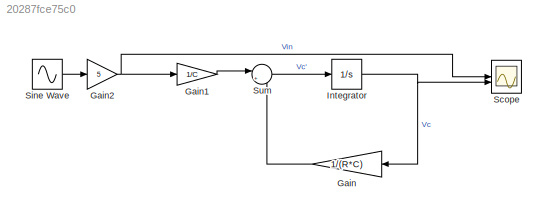
MODEL slx_20287fce75c0
KIND model
CONFIG AbsTol = auto
CONFIG EnableMultiTasking = off
CONFIG FixedStep = auto
CONFIG MaxStep = 1e-3
CONFIG MinStep = auto
CONFIG RelTol = 1e-3
CONFIG SampleTimeConstraint = Unconstrained
CONFIG SolverName = VariableStepAuto
CONFIG StartTime = 0.0
CONFIG StopTime = 10.0
BLOCK [Gain] Gain
  Gain = 1/(R*C)
  NameLocation = top
BLOCK [Gain] Gain1
  Gain = 1/C
BLOCK [Gain] Gain2
  Gain = 5
BLOCK [Integrator] Integrator
  InitialCondition = 1
BLOCK [Scope] Scope
  Floating = off
  NumInputPorts = 2
  ScopeSpecificationString = Simulink.scopes.TimeScopeBlockCfg('CurrentConfiguration', extmgr.ConfigurationSet(extmgr.Configuration('Core','General UI',true),extmgr.Configuration('Core','Source UI',true),extmgr.Configuration('Sources','WiredSimulink',true),extmgr.Configuration('Visuals','Time Domain',true,'SerializedDisplays',{struct('MinYLimReal','-6.24997','MaxYLimReal','6.24997','YLabelReal','','MinYLimMag','0.00000','MaxY...<+2012ch>
BLOCK [Sin] Sine Wave
  Frequency = 2*pi
  SampleTime = 0
BLOCK [Sum] Sum
  Inputs = |+-
LINE Gain1:1 -> Sum:1
NET Gain2:1 -> Gain1:1, Scope:1
LINE Gain:1 -> Sum:2
NET Integrator:1 -> Gain:1, Scope:2
LINE Sine Wave:1 -> Gain2:1
LINE Sum:1 -> Integrator:1
note: NET lines group one-source signal fan-out (src -> all destinations, sorted); 1:1 wires keep LINE
